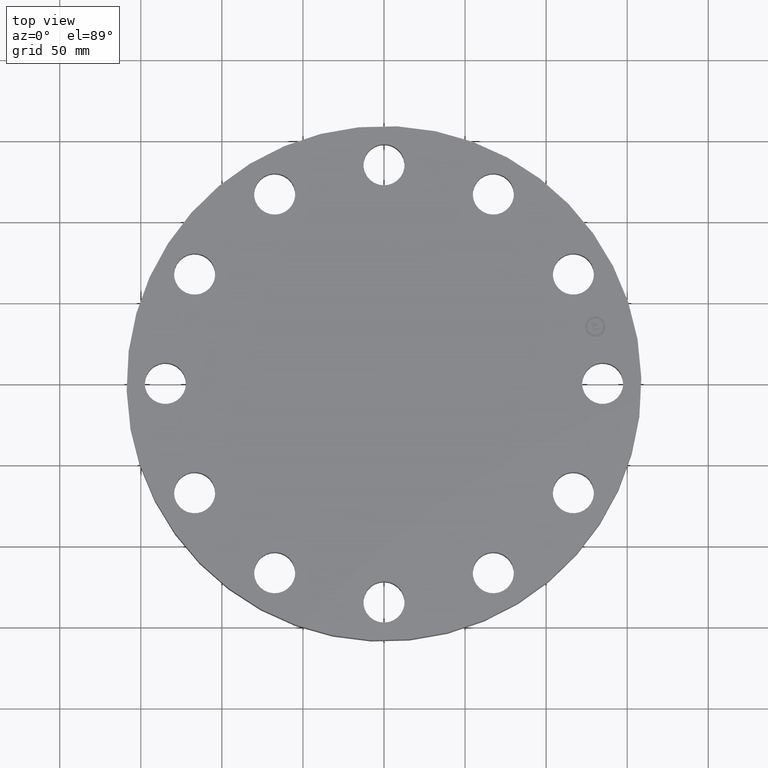
[diagram: clean part render]
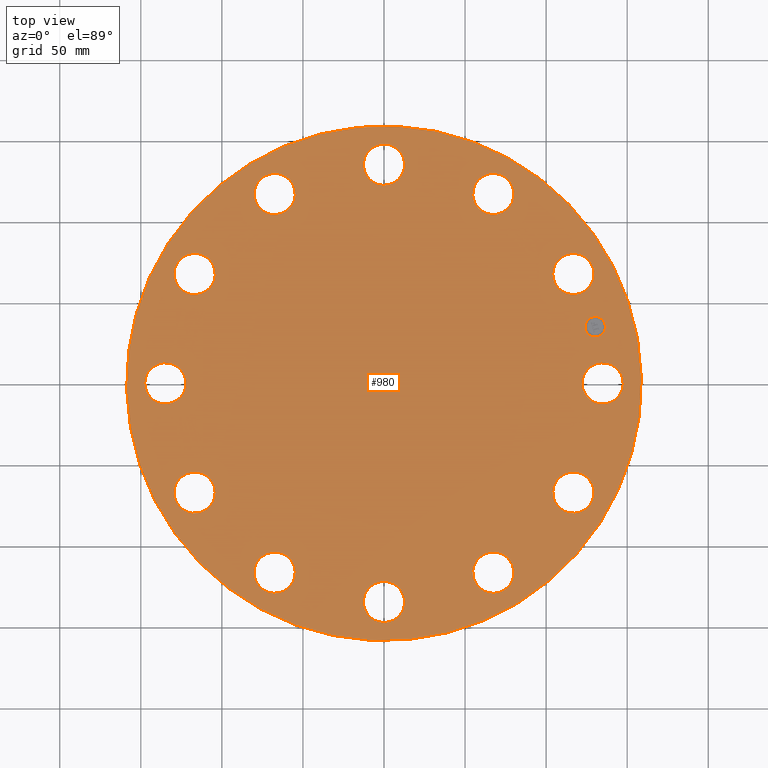
[diagram: same view with one face highlighted and labeled with its STEP entity id]
A machine part, top view. The second image highlights one B-rep face of the part: STEP entity #980.
In plain terms, the highlighted planar face has unit normal (0, 0, -1).
Its self-contained STEP definition (entity closure, byte-faithful):
#65=AXIS2_PLACEMENT_3D('Circle Axis2P3D',#63,#64,$) ;
#82=AXIS2_PLACEMENT_3D('Circle Axis2P3D',#80,#81,$) ;
#115=AXIS2_PLACEMENT_3D('Circle Axis2P3D',#113,#114,$) ;
#139=AXIS2_PLACEMENT_3D('Circle Axis2P3D',#137,#138,$) ;
#453=AXIS2_PLACEMENT_3D('Circle Axis2P3D',#451,#452,$) ;
#465=AXIS2_PLACEMENT_3D('Circle Axis2P3D',#463,#464,$) ;
#496=AXIS2_PLACEMENT_3D('Circle Axis2P3D',#494,#495,$) ;
#508=AXIS2_PLACEMENT_3D('Circle Axis2P3D',#506,#507,$) ;
#539=AXIS2_PLACEMENT_3D('Circle Axis2P3D',#537,#538,$) ;
#551=AXIS2_PLACEMENT_3D('Circle Axis2P3D',#549,#550,$) ;
#582=AXIS2_PLACEMENT_3D('Circle Axis2P3D',#580,#581,$) ;
#594=AXIS2_PLACEMENT_3D('Circle Axis2P3D',#592,#593,$) ;
#625=AXIS2_PLACEMENT_3D('Circle Axis2P3D',#623,#624,$) ;
#637=AXIS2_PLACEMENT_3D('Circle Axis2P3D',#635,#636,$) ;
#668=AXIS2_PLACEMENT_3D('Circle Axis2P3D',#666,#667,$) ;
#680=AXIS2_PLACEMENT_3D('Circle Axis2P3D',#678,#679,$) ;
#711=AXIS2_PLACEMENT_3D('Circle Axis2P3D',#709,#710,$) ;
#723=AXIS2_PLACEMENT_3D('Circle Axis2P3D',#721,#722,$) ;
#754=AXIS2_PLACEMENT_3D('Circle Axis2P3D',#752,#753,$) ;
#766=AXIS2_PLACEMENT_3D('Circle Axis2P3D',#764,#765,$) ;
#797=AXIS2_PLACEMENT_3D('Circle Axis2P3D',#795,#796,$) ;
#809=AXIS2_PLACEMENT_3D('Circle Axis2P3D',#807,#808,$) ;
#840=AXIS2_PLACEMENT_3D('Circle Axis2P3D',#838,#839,$) ;
#852=AXIS2_PLACEMENT_3D('Circle Axis2P3D',#850,#851,$) ;
#883=AXIS2_PLACEMENT_3D('Circle Axis2P3D',#881,#882,$) ;
#895=AXIS2_PLACEMENT_3D('Circle Axis2P3D',#893,#894,$) ;
#908=AXIS2_PLACEMENT_3D('Plane Axis2P3D',#905,#906,#907) ;
#964=AXIS2_PLACEMENT_3D('Circle Axis2P3D',#962,#963,$) ;
#973=AXIS2_PLACEMENT_3D('Circle Axis2P3D',#971,#972,$) ;
#46=CARTESIAN_POINT('Vertex',(4.87120871907,0.239712769303,1.62000000001)) ;
#60=CARTESIAN_POINT('Vertex',(5.74879128097,-0.239712769303,1.62000000001)) ;
#63=CARTESIAN_POINT('Axis2P3D Location',(5.31000000002,0.,1.62000000001)) ;
#80=CARTESIAN_POINT('Axis2P3D Location',(5.31000000002,0.,1.62000000001)) ;
#110=CARTESIAN_POINT('Vertex',(-2.99640961629,-5.48489101184,1.62000000001)) ;
#113=CARTESIAN_POINT('Axis2P3D Location',(0.,0.,1.62000000001)) ;
#117=CARTESIAN_POINT('Vertex',(2.99640961629,5.48489101184,1.62000000001)) ;
#137=CARTESIAN_POINT('Axis2P3D Location',(0.,0.,1.62000000001)) ;
#441=CARTESIAN_POINT('Vertex',(-4.33844688251,2.22800701171,1.62000000001)) ;
#448=CARTESIAN_POINT('Vertex',(-4.85874290572,3.08199298831,1.62000000001)) ;
#451=CARTESIAN_POINT('Axis2P3D Location',(-4.59859489411,2.65500000001,1.62000000001)) ;
#463=CARTESIAN_POINT('Axis2P3D Location',(-4.59859489411,2.65500000001,1.62000000001)) ;
#484=CARTESIAN_POINT('Vertex',(2.64320170737,-4.0987341132,1.62000000001)) ;
#491=CARTESIAN_POINT('Vertex',(2.66679829266,-5.09845567502,1.62000000001)) ;
#494=CARTESIAN_POINT('Axis2P3D Location',(2.65500000001,-4.59859489411,1.62000000001)) ;
#506=CARTESIAN_POINT('Axis2P3D Location',(2.65500000001,-4.59859489411,1.62000000001)) ;
#527=CARTESIAN_POINT('Vertex',(-2.64320170737,4.0987341132,1.62000000001)) ;
#534=CARTESIAN_POINT('Vertex',(-2.66679829266,5.09845567502,1.62000000001)) ;
#537=CARTESIAN_POINT('Axis2P3D Location',(-2.65500000001,4.59859489411,1.62000000001)) ;
#549=CARTESIAN_POINT('Axis2P3D Location',(-2.65500000001,4.59859489411,1.62000000001)) ;
#570=CARTESIAN_POINT('Vertex',(0.239712769303,-4.87120871907,1.62000000001)) ;
#577=CARTESIAN_POINT('Vertex',(-0.239712769303,-5.74879128097,1.62000000001)) ;
#580=CARTESIAN_POINT('Axis2P3D Location',(-7.9382121303E-016,-5.31000000002,1.62000000001)) ;
#592=CARTESIAN_POINT('Axis2P3D Location',(-7.9382121303E-016,-5.31000000002,1.62000000001)) ;
#613=CARTESIAN_POINT('Vertex',(-0.239712769303,4.87120871907,1.62000000001)) ;
#620=CARTESIAN_POINT('Vertex',(0.239712769303,5.74879128097,1.62000000001)) ;
#623=CARTESIAN_POINT('Axis2P3D Location',(-9.75431175525E-016,5.31000000002,1.62000000001)) ;
#635=CARTESIAN_POINT('Axis2P3D Location',(-9.75431175525E-016,5.31000000002,1.62000000001)) ;
#656=CARTESIAN_POINT('Vertex',(-2.22800701171,-4.33844688251,1.62000000001)) ;
#663=CARTESIAN_POINT('Vertex',(-3.08199298831,-4.85874290572,1.62000000001)) ;
#666=CARTESIAN_POINT('Axis2P3D Location',(-2.65500000001,-4.59859489411,1.62000000001)) ;
#678=CARTESIAN_POINT('Axis2P3D Location',(-2.65500000001,-4.59859489411,1.62000000001)) ;
#699=CARTESIAN_POINT('Vertex',(2.22800701171,4.33844688251,1.62000000001)) ;
#706=CARTESIAN_POINT('Vertex',(3.08199298831,4.85874290572,1.62000000001)) ;
#709=CARTESIAN_POINT('Axis2P3D Location',(2.65500000001,4.59859489411,1.62000000001)) ;
#721=CARTESIAN_POINT('Axis2P3D Location',(2.65500000001,4.59859489411,1.62000000001)) ;
#742=CARTESIAN_POINT('Vertex',(-4.0987341132,-2.64320170737,1.62000000001)) ;
#749=CARTESIAN_POINT('Vertex',(-5.09845567502,-2.66679829266,1.62000000001)) ;
#752=CARTESIAN_POINT('Axis2P3D Location',(-4.59859489411,-2.65500000001,1.62000000001)) ;
#764=CARTESIAN_POINT('Axis2P3D Location',(-4.59859489411,-2.65500000001,1.62000000001)) ;
#785=CARTESIAN_POINT('Vertex',(4.0987341132,2.64320170737,1.62000000001)) ;
#792=CARTESIAN_POINT('Vertex',(5.09845567502,2.66679829266,1.62000000001)) ;
#795=CARTESIAN_POINT('Axis2P3D Location',(4.59859489411,2.65500000001,1.62000000001)) ;
#807=CARTESIAN_POINT('Axis2P3D Location',(4.59859489411,2.65500000001,1.62000000001)) ;
#828=CARTESIAN_POINT('Vertex',(-4.87120871907,-0.239712769303,1.62000000001)) ;
#835=CARTESIAN_POINT('Vertex',(-5.74879128097,0.239712769303,1.62000000001)) ;
#838=CARTESIAN_POINT('Axis2P3D Location',(-5.31000000002,-6.5028745035E-016,1.62000000001)) ;
#850=CARTESIAN_POINT('Axis2P3D Location',(-5.31000000002,-6.5028745035E-016,1.62000000001)) ;
#871=CARTESIAN_POINT('Vertex',(4.33844688251,-2.22800701171,1.62000000001)) ;
#878=CARTESIAN_POINT('Vertex',(4.85874290572,-3.08199298831,1.62000000001)) ;
#881=CARTESIAN_POINT('Axis2P3D Location',(4.59859489411,-2.65500000001,1.62000000001)) ;
#893=CARTESIAN_POINT('Axis2P3D Location',(4.59859489411,-2.65500000001,1.62000000001)) ;
#905=CARTESIAN_POINT('Axis2P3D Location',(0.,6.25000000002,1.62000000001)) ;
#962=CARTESIAN_POINT('Axis2P3D Location',(5.12906613762,1.3743291295,1.62000000001)) ;
#966=CARTESIAN_POINT('Vertex',(5.06500842395,1.61339577151,1.62000000001)) ;
#968=CARTESIAN_POINT('Vertex',(5.19312385128,1.13526248749,1.62000000001)) ;
#971=CARTESIAN_POINT('Axis2P3D Location',(5.12906613762,1.3743291295,1.62000000001)) ;
#64=DIRECTION('Axis2P3D Direction',(0.,-0.,-0.0393700787402)) ;
#81=DIRECTION('Axis2P3D Direction',(0.,-0.,-0.0393700787402)) ;
#114=DIRECTION('Axis2P3D Direction',(0.,0.,-0.0393700787402)) ;
#138=DIRECTION('Axis2P3D Direction',(0.,0.,-0.0393700787402)) ;
#452=DIRECTION('Axis2P3D Direction',(0.,0.,-0.0393700787402)) ;
#464=DIRECTION('Axis2P3D Direction',(0.,0.,-0.0393700787402)) ;
#495=DIRECTION('Axis2P3D Direction',(0.,-0.,-0.0393700787402)) ;
#507=DIRECTION('Axis2P3D Direction',(0.,-0.,-0.0393700787402)) ;
#538=DIRECTION('Axis2P3D Direction',(0.,0.,-0.0393700787402)) ;
#550=DIRECTION('Axis2P3D Direction',(0.,0.,-0.0393700787402)) ;
#581=DIRECTION('Axis2P3D Direction',(0.,-0.,-0.0393700787402)) ;
#593=DIRECTION('Axis2P3D Direction',(0.,-0.,-0.0393700787402)) ;
#624=DIRECTION('Axis2P3D Direction',(0.,0.,-0.0393700787402)) ;
#636=DIRECTION('Axis2P3D Direction',(0.,0.,-0.0393700787402)) ;
#667=DIRECTION('Axis2P3D Direction',(-0.,0.,-0.0393700787402)) ;
#679=DIRECTION('Axis2P3D Direction',(-0.,0.,-0.0393700787402)) ;
#710=DIRECTION('Axis2P3D Direction',(0.,0.,-0.0393700787402)) ;
#722=DIRECTION('Axis2P3D Direction',(0.,0.,-0.0393700787402)) ;
#753=DIRECTION('Axis2P3D Direction',(-0.,0.,-0.0393700787402)) ;
#765=DIRECTION('Axis2P3D Direction',(-0.,0.,-0.0393700787402)) ;
#796=DIRECTION('Axis2P3D Direction',(0.,0.,-0.0393700787402)) ;
#808=DIRECTION('Axis2P3D Direction',(0.,0.,-0.0393700787402)) ;
#839=DIRECTION('Axis2P3D Direction',(-0.,0.,-0.0393700787402)) ;
#851=DIRECTION('Axis2P3D Direction',(-0.,0.,-0.0393700787402)) ;
#882=DIRECTION('Axis2P3D Direction',(0.,-0.,-0.0393700787402)) ;
#894=DIRECTION('Axis2P3D Direction',(0.,-0.,-0.0393700787402)) ;
#906=DIRECTION('Axis2P3D Direction',(0.,0.,-0.0393700787402)) ;
#907=DIRECTION('Axis2P3D XDirection',(0.0393700787402,0.,0.)) ;
#963=DIRECTION('Axis2P3D Direction',(0.,0.,-0.0393700787402)) ;
#972=DIRECTION('Axis2P3D Direction',(0.,0.,-0.0393700787402)) ;
#911=ORIENTED_EDGE('',*,*,#141,.F.) ;
#912=ORIENTED_EDGE('',*,*,#119,.F.) ;
#915=ORIENTED_EDGE('',*,*,#67,.T.) ;
#916=ORIENTED_EDGE('',*,*,#84,.T.) ;
#919=ORIENTED_EDGE('',*,*,#897,.T.) ;
#920=ORIENTED_EDGE('',*,*,#885,.T.) ;
#923=ORIENTED_EDGE('',*,*,#510,.T.) ;
#924=ORIENTED_EDGE('',*,*,#498,.T.) ;
#927=ORIENTED_EDGE('',*,*,#596,.T.) ;
#928=ORIENTED_EDGE('',*,*,#584,.T.) ;
#931=ORIENTED_EDGE('',*,*,#682,.T.) ;
#932=ORIENTED_EDGE('',*,*,#670,.T.) ;
#935=ORIENTED_EDGE('',*,*,#768,.T.) ;
#936=ORIENTED_EDGE('',*,*,#756,.T.) ;
#939=ORIENTED_EDGE('',*,*,#854,.T.) ;
#940=ORIENTED_EDGE('',*,*,#842,.T.) ;
#943=ORIENTED_EDGE('',*,*,#467,.T.) ;
#944=ORIENTED_EDGE('',*,*,#455,.T.) ;
#947=ORIENTED_EDGE('',*,*,#553,.T.) ;
#948=ORIENTED_EDGE('',*,*,#541,.T.) ;
#951=ORIENTED_EDGE('',*,*,#639,.T.) ;
#952=ORIENTED_EDGE('',*,*,#627,.T.) ;
#955=ORIENTED_EDGE('',*,*,#725,.T.) ;
#956=ORIENTED_EDGE('',*,*,#713,.T.) ;
#959=ORIENTED_EDGE('',*,*,#811,.T.) ;
#960=ORIENTED_EDGE('',*,*,#799,.T.) ;
#977=ORIENTED_EDGE('',*,*,#970,.T.) ;
#978=ORIENTED_EDGE('',*,*,#975,.T.) ;
#917=FACE_BOUND('',#914,.T.) ;
#921=FACE_BOUND('',#918,.T.) ;
#925=FACE_BOUND('',#922,.T.) ;
#929=FACE_BOUND('',#926,.T.) ;
#933=FACE_BOUND('',#930,.T.) ;
#937=FACE_BOUND('',#934,.T.) ;
#941=FACE_BOUND('',#938,.T.) ;
#945=FACE_BOUND('',#942,.T.) ;
#949=FACE_BOUND('',#946,.T.) ;
#953=FACE_BOUND('',#950,.T.) ;
#957=FACE_BOUND('',#954,.T.) ;
#961=FACE_BOUND('',#958,.T.) ;
#979=FACE_BOUND('',#976,.T.) ;
#980=ADVANCED_FACE('PartBody',(#913,#917,#921,#925,#929,#933,#937,#941,#945,#949,#953,#957,#961,#979),#909,.F.) ;
#66=CIRCLE('generated circle',#65,0.500000000002) ;
#83=CIRCLE('generated circle',#82,0.500000000002) ;
#116=CIRCLE('generated circle',#115,6.25000000003) ;
#140=CIRCLE('generated circle',#139,6.25000000003) ;
#454=CIRCLE('generated circle',#453,0.500000000002) ;
#466=CIRCLE('generated circle',#465,0.500000000002) ;
#497=CIRCLE('generated circle',#496,0.500000000002) ;
#509=CIRCLE('generated circle',#508,0.500000000002) ;
#540=CIRCLE('generated circle',#539,0.500000000002) ;
#552=CIRCLE('generated circle',#551,0.500000000002) ;
#583=CIRCLE('generated circle',#582,0.500000000002) ;
#595=CIRCLE('generated circle',#594,0.500000000002) ;
#626=CIRCLE('generated circle',#625,0.500000000002) ;
#638=CIRCLE('generated circle',#637,0.500000000002) ;
#669=CIRCLE('generated circle',#668,0.500000000002) ;
#681=CIRCLE('generated circle',#680,0.500000000002) ;
#712=CIRCLE('generated circle',#711,0.500000000002) ;
#724=CIRCLE('generated circle',#723,0.500000000002) ;
#755=CIRCLE('generated circle',#754,0.500000000002) ;
#767=CIRCLE('generated circle',#766,0.500000000002) ;
#798=CIRCLE('generated circle',#797,0.500000000002) ;
#810=CIRCLE('generated circle',#809,0.500000000002) ;
#841=CIRCLE('generated circle',#840,0.500000000002) ;
#853=CIRCLE('generated circle',#852,0.500000000002) ;
#884=CIRCLE('generated circle',#883,0.500000000002) ;
#896=CIRCLE('generated circle',#895,0.500000000002) ;
#965=CIRCLE('generated circle',#964,0.247500000001) ;
#974=CIRCLE('generated circle',#973,0.247500000001) ;
#67=EDGE_CURVE('',#47,#61,#66,.T.) ;
#84=EDGE_CURVE('',#61,#47,#83,.T.) ;
#119=EDGE_CURVE('',#111,#118,#116,.T.) ;
#141=EDGE_CURVE('',#118,#111,#140,.T.) ;
#455=EDGE_CURVE('',#442,#449,#454,.T.) ;
#467=EDGE_CURVE('',#449,#442,#466,.T.) ;
#498=EDGE_CURVE('',#485,#492,#497,.T.) ;
#510=EDGE_CURVE('',#492,#485,#509,.T.) ;
#541=EDGE_CURVE('',#528,#535,#540,.T.) ;
#553=EDGE_CURVE('',#535,#528,#552,.T.) ;
#584=EDGE_CURVE('',#571,#578,#583,.T.) ;
#596=EDGE_CURVE('',#578,#571,#595,.T.) ;
#627=EDGE_CURVE('',#614,#621,#626,.T.) ;
#639=EDGE_CURVE('',#621,#614,#638,.T.) ;
#670=EDGE_CURVE('',#657,#664,#669,.T.) ;
#682=EDGE_CURVE('',#664,#657,#681,.T.) ;
#713=EDGE_CURVE('',#700,#707,#712,.T.) ;
#725=EDGE_CURVE('',#707,#700,#724,.T.) ;
#756=EDGE_CURVE('',#743,#750,#755,.T.) ;
#768=EDGE_CURVE('',#750,#743,#767,.T.) ;
#799=EDGE_CURVE('',#786,#793,#798,.T.) ;
#811=EDGE_CURVE('',#793,#786,#810,.T.) ;
#842=EDGE_CURVE('',#829,#836,#841,.T.) ;
#854=EDGE_CURVE('',#836,#829,#853,.T.) ;
#885=EDGE_CURVE('',#872,#879,#884,.T.) ;
#897=EDGE_CURVE('',#879,#872,#896,.T.) ;
#970=EDGE_CURVE('',#967,#969,#965,.T.) ;
#975=EDGE_CURVE('',#969,#967,#974,.T.) ;
#910=EDGE_LOOP('',(#911,#912)) ;
#914=EDGE_LOOP('',(#915,#916)) ;
#918=EDGE_LOOP('',(#919,#920)) ;
#922=EDGE_LOOP('',(#923,#924)) ;
#926=EDGE_LOOP('',(#927,#928)) ;
#930=EDGE_LOOP('',(#931,#932)) ;
#934=EDGE_LOOP('',(#935,#936)) ;
#938=EDGE_LOOP('',(#939,#940)) ;
#942=EDGE_LOOP('',(#943,#944)) ;
#946=EDGE_LOOP('',(#947,#948)) ;
#950=EDGE_LOOP('',(#951,#952)) ;
#954=EDGE_LOOP('',(#955,#956)) ;
#958=EDGE_LOOP('',(#959,#960)) ;
#976=EDGE_LOOP('',(#977,#978)) ;
#913=FACE_OUTER_BOUND('',#910,.T.) ;
#909=PLANE('',#908) ;
#47=VERTEX_POINT('',#46) ;
#61=VERTEX_POINT('',#60) ;
#111=VERTEX_POINT('',#110) ;
#118=VERTEX_POINT('',#117) ;
#442=VERTEX_POINT('',#441) ;
#449=VERTEX_POINT('',#448) ;
#485=VERTEX_POINT('',#484) ;
#492=VERTEX_POINT('',#491) ;
#528=VERTEX_POINT('',#527) ;
#535=VERTEX_POINT('',#534) ;
#571=VERTEX_POINT('',#570) ;
#578=VERTEX_POINT('',#577) ;
#614=VERTEX_POINT('',#613) ;
#621=VERTEX_POINT('',#620) ;
#657=VERTEX_POINT('',#656) ;
#664=VERTEX_POINT('',#663) ;
#700=VERTEX_POINT('',#699) ;
#707=VERTEX_POINT('',#706) ;
#743=VERTEX_POINT('',#742) ;
#750=VERTEX_POINT('',#749) ;
#786=VERTEX_POINT('',#785) ;
#793=VERTEX_POINT('',#792) ;
#829=VERTEX_POINT('',#828) ;
#836=VERTEX_POINT('',#835) ;
#872=VERTEX_POINT('',#871) ;
#879=VERTEX_POINT('',#878) ;
#967=VERTEX_POINT('',#966) ;
#969=VERTEX_POINT('',#968) ;